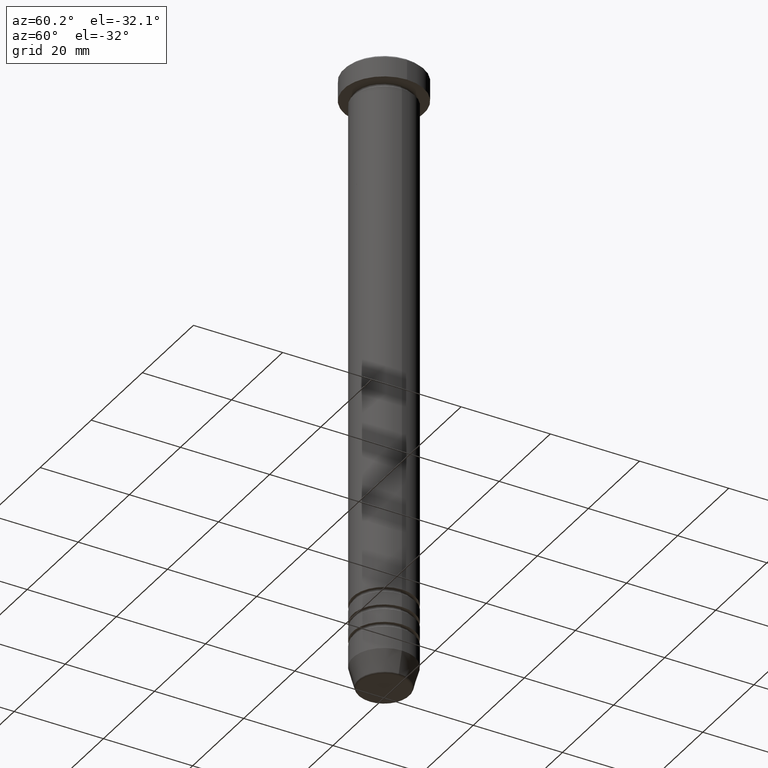
[diagram: clean part render]
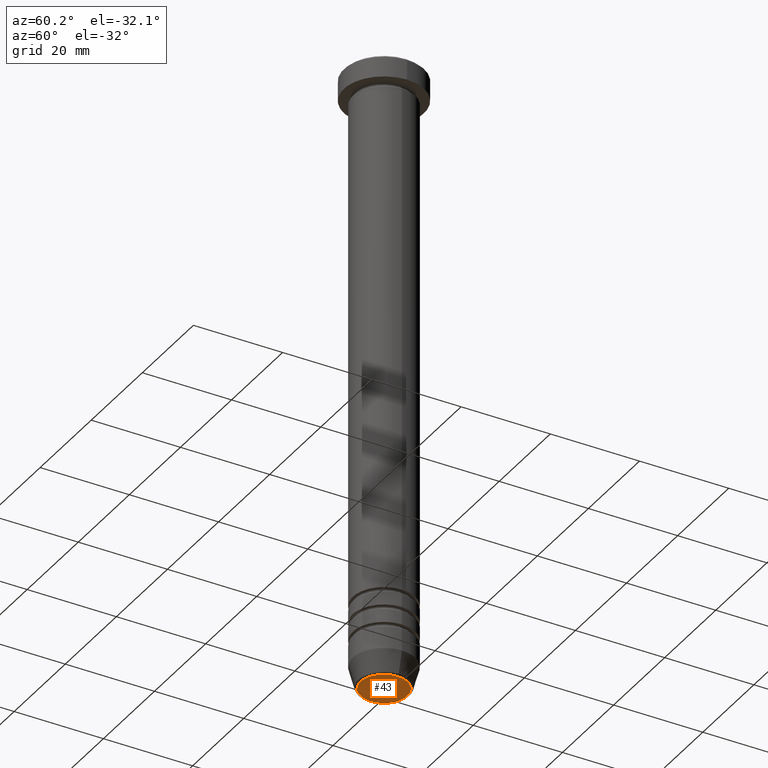
[diagram: same view with one face highlighted and labeled with its STEP entity id]
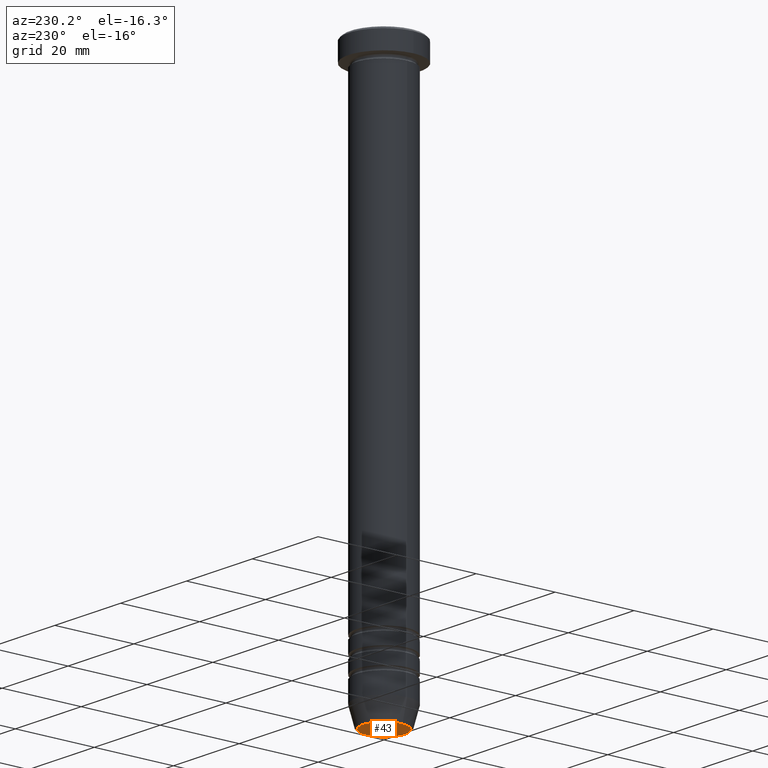
[diagram: same view with one face highlighted and labeled with its STEP entity id]
A machine part, auxiliary view. The second image highlights one B-rep face of the part: STEP entity #43.
A second angle (auxiliary view) of the same face is appended — the face is thin or edge-on in the first view.
In plain terms, the highlighted planar face has unit normal (0, -0, 1).
Its self-contained STEP definition (entity closure, byte-faithful):
#22 = PLANE ( 'NONE',  #129 ) ;
#24 = CIRCLE ( 'NONE', #184, 5.276590543854897675 ) ;
#43 = ADVANCED_FACE ( 'NONE', ( #848 ), #22, .F. ) ;
#51 = VERTEX_POINT ( 'NONE', #210 ) ;
#125 = CIRCLE ( 'NONE', #446, 5.276590543854897675 ) ;
#129 = AXIS2_PLACEMENT_3D ( 'NONE', #767, #367, #1016 ) ;
#148 = ORIENTED_EDGE ( 'NONE', *, *, #225, .T. ) ;
#164 = DIRECTION ( 'NONE',  ( 0.000000000000000000, 0.000000000000000000, -1.000000000000000000 ) ) ;
#184 = AXIS2_PLACEMENT_3D ( 'NONE', #680, #593, #925 ) ;
#210 = CARTESIAN_POINT ( 'NONE',  ( -5.276590543854897675, 6.757689212787761971E-16, -140.0000000000000000 ) ) ;
#225 = EDGE_CURVE ( 'NONE', #51, #346, #125, .T. ) ;
#346 = VERTEX_POINT ( 'NONE', #571 ) ;
#355 = EDGE_LOOP ( 'NONE', ( #517, #148 ) ) ;
#367 = DIRECTION ( 'NONE',  ( 0.000000000000000000, -0.000000000000000000, 1.000000000000000000 ) ) ;
#425 = EDGE_CURVE ( 'NONE', #346, #51, #24, .T. ) ;
#446 = AXIS2_PLACEMENT_3D ( 'NONE', #738, #164, #907 ) ;
#517 = ORIENTED_EDGE ( 'NONE', *, *, #425, .T. ) ;
#571 = CARTESIAN_POINT ( 'NONE',  ( 5.276590543854897675, 0.000000000000000000, -140.0000000000000000 ) ) ;
#593 = DIRECTION ( 'NONE',  ( 0.000000000000000000, 0.000000000000000000, -1.000000000000000000 ) ) ;
#680 = CARTESIAN_POINT ( 'NONE',  ( 0.000000000000000000, 0.000000000000000000, -140.0000000000000000 ) ) ;
#738 = CARTESIAN_POINT ( 'NONE',  ( 0.000000000000000000, 0.000000000000000000, -140.0000000000000000 ) ) ;
#767 = CARTESIAN_POINT ( 'NONE',  ( 0.000000000000000000, 1.102182119232618069E-14, -140.0000000000000000 ) ) ;
#848 = FACE_OUTER_BOUND ( 'NONE', #355, .T. ) ;
#907 = DIRECTION ( 'NONE',  ( 1.000000000000000000, 0.000000000000000000, 0.000000000000000000 ) ) ;
#925 = DIRECTION ( 'NONE',  ( 1.000000000000000000, 0.000000000000000000, 0.000000000000000000 ) ) ;
#1016 = DIRECTION ( 'NONE',  ( 1.000000000000000000, 0.000000000000000000, 0.000000000000000000 ) ) ;